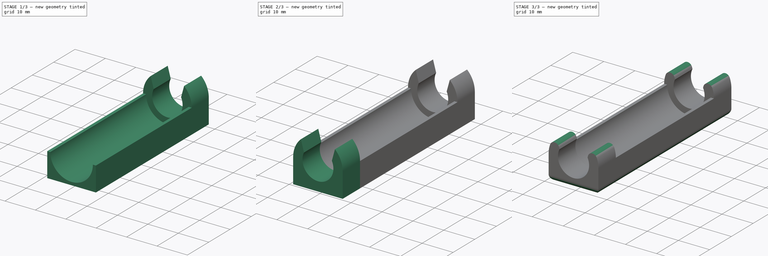
[diagram: build sequence overview — one tinted view per stage of 3, left to right]
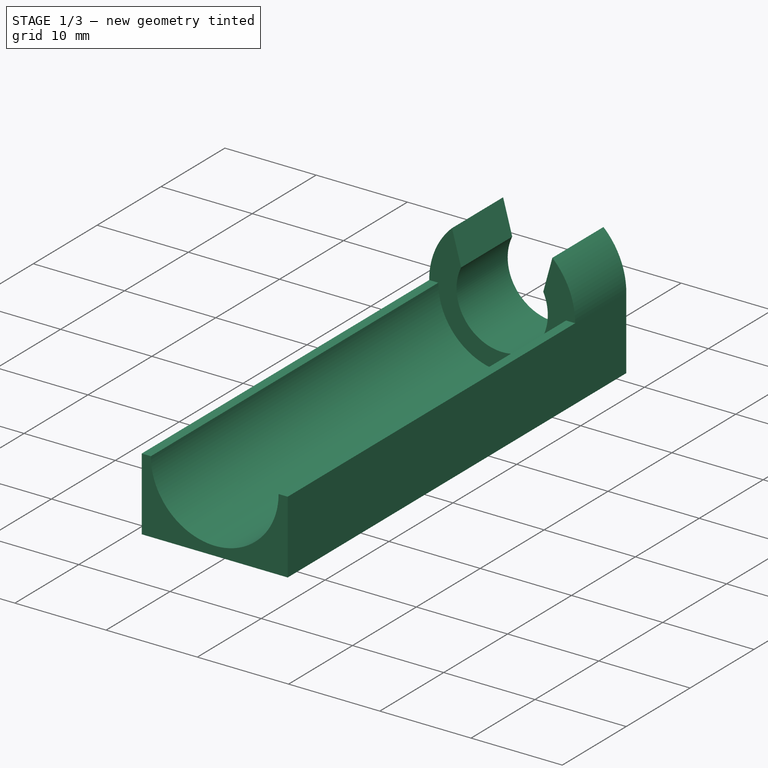
[diagram: stage 1 of 3 — iso view after this stage's code; geometry added in this stage tinted green]
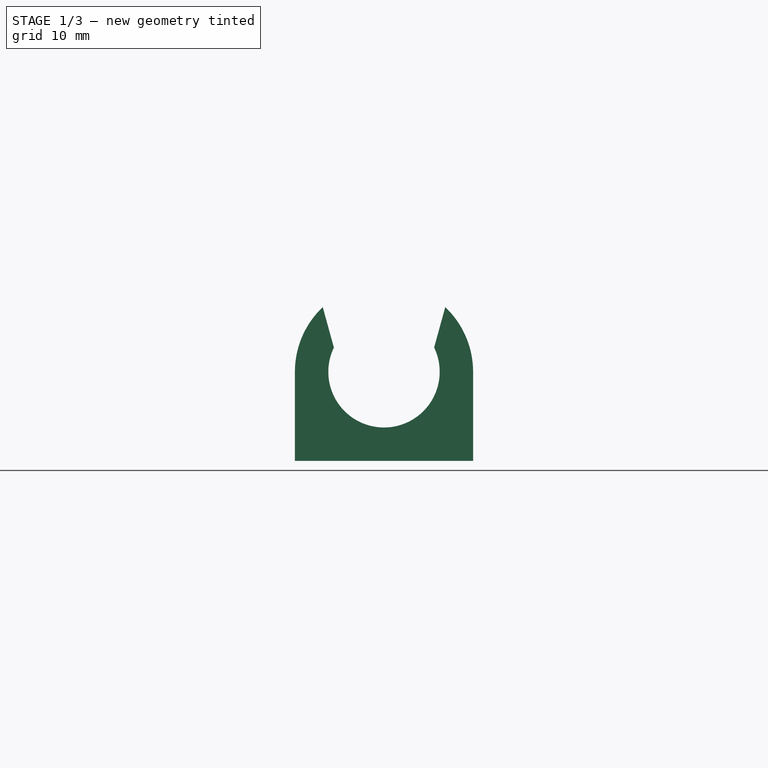
[diagram: stage 1 of 3 — front view after this stage's code; geometry added in this stage tinted green]
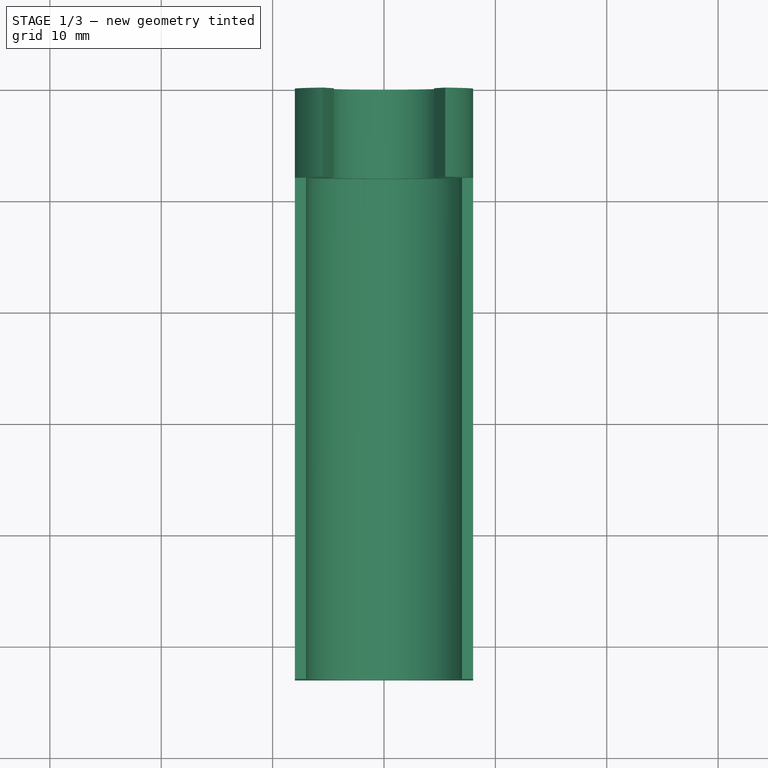
[diagram: stage 1 of 3 — top view after this stage's code; geometry added in this stage tinted green]
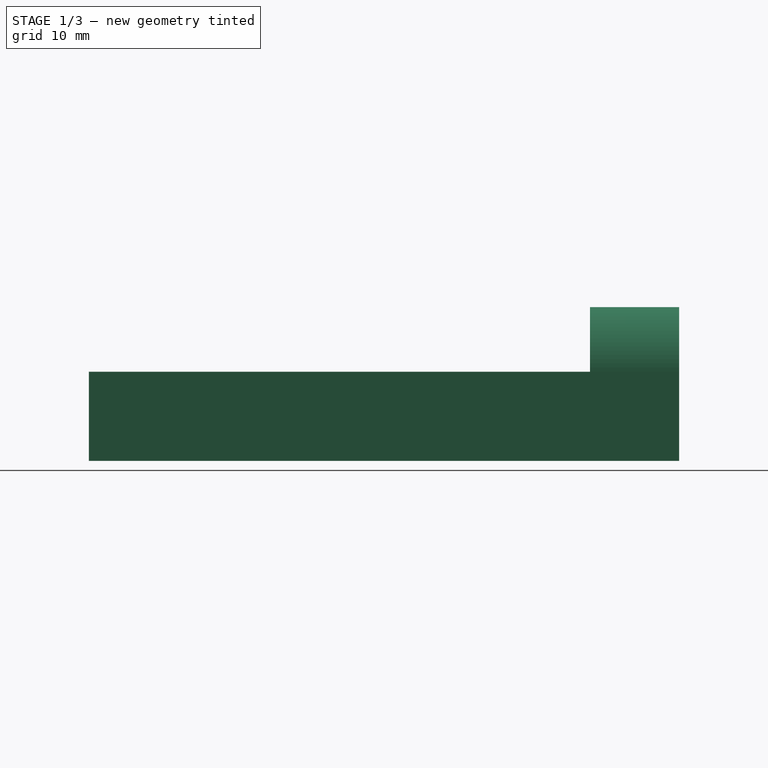
[diagram: stage 1 of 3 — right view after this stage's code; geometry added in this stage tinted green]
FCSTD DOCUMENT  (FreeCAD 0.16RUnknown)
Label: 360_controller_connector_clip
License: All rights reserved
LicenseURL: http://en.wikipedia.org/wiki/All_rights_reserved
objects: Sketcher::SketchObject×3, PartDesign::Pad×3, PartDesign::Fillet×2
note: 11 computed .brp shape members not serialized (recipe doc carries the construction recipe); baked Part::Feature solids carry a one-line shape summary decoded from their .brp

FEATURE [Sketcher::SketchObject] Sketch
  Placement = pos=(0,0,0) rot=(-1,0,0;4.71239rad)
  sketch-geometry (10):
    g0: LineSegment StartX=-8 StartY=0 StartZ=0 EndX=8 EndY=0 EndZ=0
    g1: LineSegment StartX=-8 StartY=0 StartZ=0 EndX=-8 EndY=7.99997 EndZ=0
    g2: LineSegment StartX=8 StartY=0 StartZ=0 EndX=8 EndY=7.99997 EndZ=0
    g3: ArcOfCircle CenterX=0 CenterY=8 CenterZ=0 NormalX=0 NormalY=0 NormalZ=1 Radius=8 StartAngle=2.32884 EndAngle=3.1416
    g4: ArcOfCircle CenterX=0 CenterY=8 CenterZ=0 NormalX=0 NormalY=0 NormalZ=1 Radius=5 StartAngle=2.69057 EndAngle=6.73421
    g5: LineSegment StartX=-4.5 StartY=10.1794 StartZ=0 EndX=-5.5 EndY=13.8095 EndZ=0
    g6: ArcOfCircle CenterX=0 CenterY=8 CenterZ=0 NormalX=0 NormalY=0 NormalZ=1 Radius=8 StartAngle=6.28318 EndAngle=7.09594
    g7: LineSegment StartX=4.5 StartY=10.1794 StartZ=0 EndX=5.5 EndY=13.8095 EndZ=0
    g8: LineSegment [constr] StartX=-5.5 StartY=13.8095 StartZ=0 EndX=5.5 EndY=13.8095 EndZ=0
    g9: LineSegment [constr] StartX=-4.5 StartY=10.1794 StartZ=0 EndX=4.5 EndY=10.1794 EndZ=0
  constraints (29):
    c: PointOnObject(g0,g-1)
    c: PointOnObject(g0,g-1)
    c: Coincident(g1,g0)
    c: Vertical(g1)
    c: Coincident(g2,g0)
    c: Vertical(g2)
    c: PointOnObject(g3,g-2)
    c: Coincident(g3,g1)
    c: Tangent(g3,g1)
    c: Coincident(g4,g3)
    c: Coincident(g5,g4)
    c: Coincident(g5,g3)
    c: Coincident(g6,g3)
    c: Coincident(g6,g2)
    c: Coincident(g7,g4)
    c: Coincident(g7,g6)
    c: Radius(g4) = 5
    c: Tangent(g2,g6)
    c: Radius(g6) = 8
    c: Radius(g3) = 8
    c: Coincident(g8,g3)
    c: Coincident(g8,g6)
    c: Horizontal(g8)
    c: Coincident(g9,g4)
    c: Coincident(g9,g4)
    c: Horizontal(g9)
    c: DistanceX(g9,g9) = 9
    c: DistanceX(g8,g8) = 11
    c: DistanceY(g-1,g3) = 8
FEATURE [PartDesign::Pad] Pad
  Length = 8
  Length2 = 100
  Placement = pos=(0,0,0) rot=(-1,0,0;4.71239rad)
  Sketch = -> Sketch
  Type = 0
FEATURE [Sketcher::SketchObject] Sketch001
  Placement = pos=(0,-8,0) rot=(1,0,0;1.5708rad)
  Support = -> Pad [Face10]
  sketch-geometry (7):
    g0: LineSegment StartX=-8 StartY=0 StartZ=0 EndX=8 EndY=0 EndZ=0
    g1: LineSegment StartX=-8 StartY=0 StartZ=0 EndX=-8 EndY=8 EndZ=0
    g2: LineSegment StartX=8 StartY=0 StartZ=0 EndX=8 EndY=8 EndZ=0
    g3: ArcOfCircle CenterX=0 CenterY=8 CenterZ=0 NormalX=0 NormalY=0 NormalZ=1 Radius=7 StartAngle=3.14159 EndAngle=6.28319
    g4: LineSegment StartX=-7 StartY=8 StartZ=0 EndX=-8 EndY=8 EndZ=0
    g5: LineSegment StartX=7 StartY=8 StartZ=0 EndX=8 EndY=8 EndZ=0
    g6: LineSegment [constr] StartX=-7 StartY=8 StartZ=0 EndX=7 EndY=8 EndZ=0
  constraints (21):
    c: PointOnObject(g0,g-1)
    c: PointOnObject(g0,g-1)
    c: Coincident(g1,g0)
    c: Vertical(g1)
    c: Coincident(g2,g0)
    c: Vertical(g2)
    c: Radius(g3) = 7
    c: Coincident(g4,g3)
    c: Coincident(g4,g1)
    c: Coincident(g5,g3)
    c: Coincident(g5,g2)
    c: Horizontal(g5)
    c: Horizontal(g4)
    c: DistanceY(g-1,g3) = 8
    c: DistanceX(g1,g3) = 8
    c: DistanceX(g3,g2) = 8
    c: PointOnObject(g3,g-2)
    c: Coincident(g6,g3)
    c: Coincident(g6,g3)
    c: Horizontal(g6)
    c: PointOnObject(g3,g6)
FEATURE [PartDesign::Pad] Pad001
  Length = 45
  Length2 = 100
  Placement = pos=(0,0,0) rot=(-1,0,0;4.71239rad)
  Sketch = -> Sketch001
  Type = 0
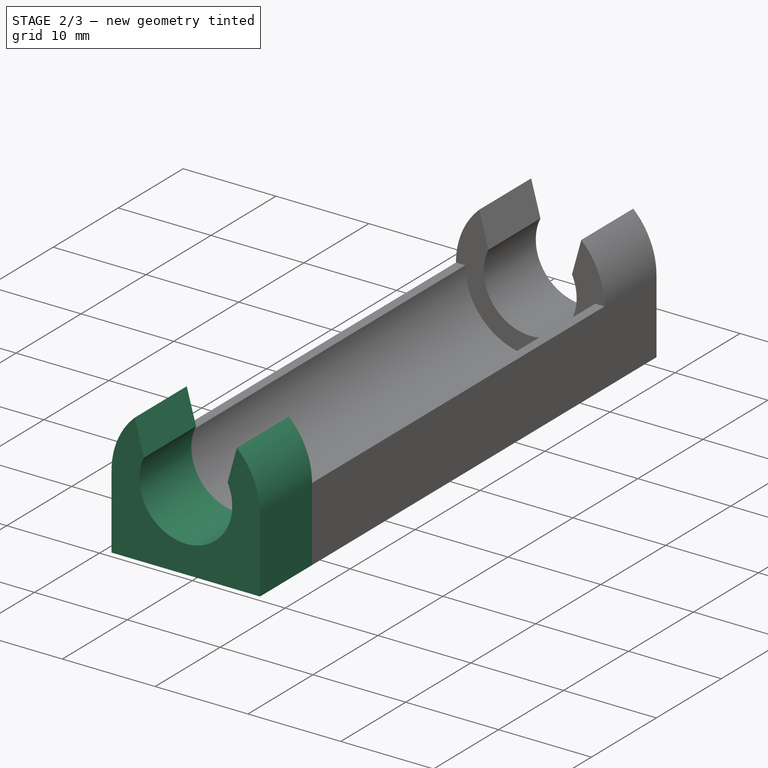
[diagram: stage 2 of 3 — iso view after this stage's code; geometry added in this stage tinted green]
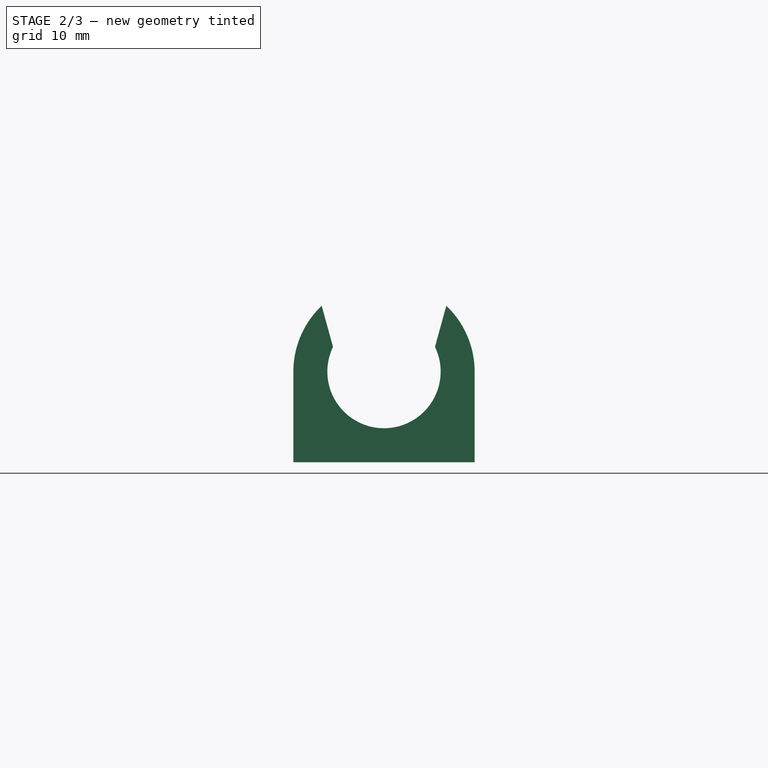
[diagram: stage 2 of 3 — front view after this stage's code; geometry added in this stage tinted green]
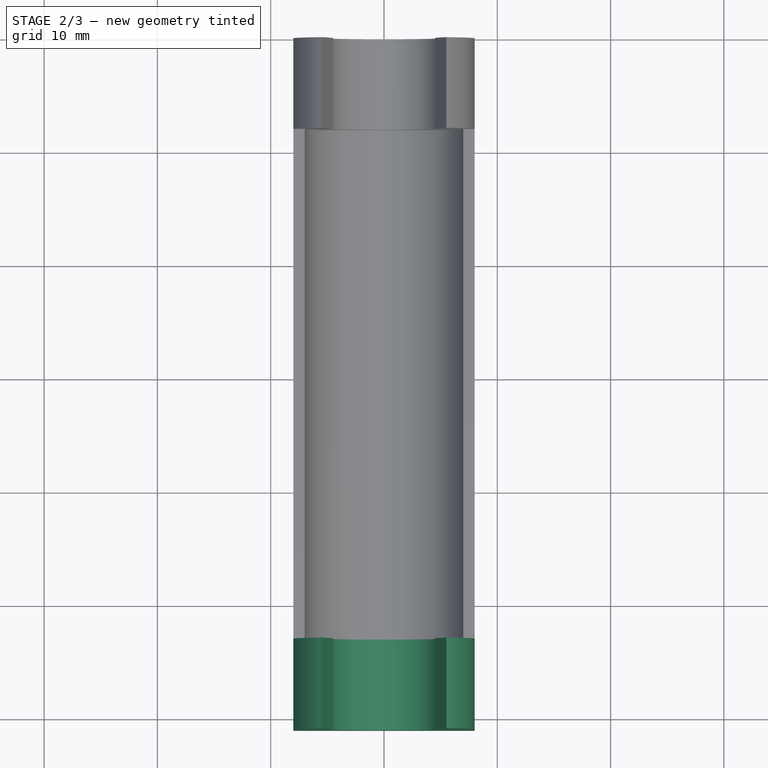
[diagram: stage 2 of 3 — top view after this stage's code; geometry added in this stage tinted green]
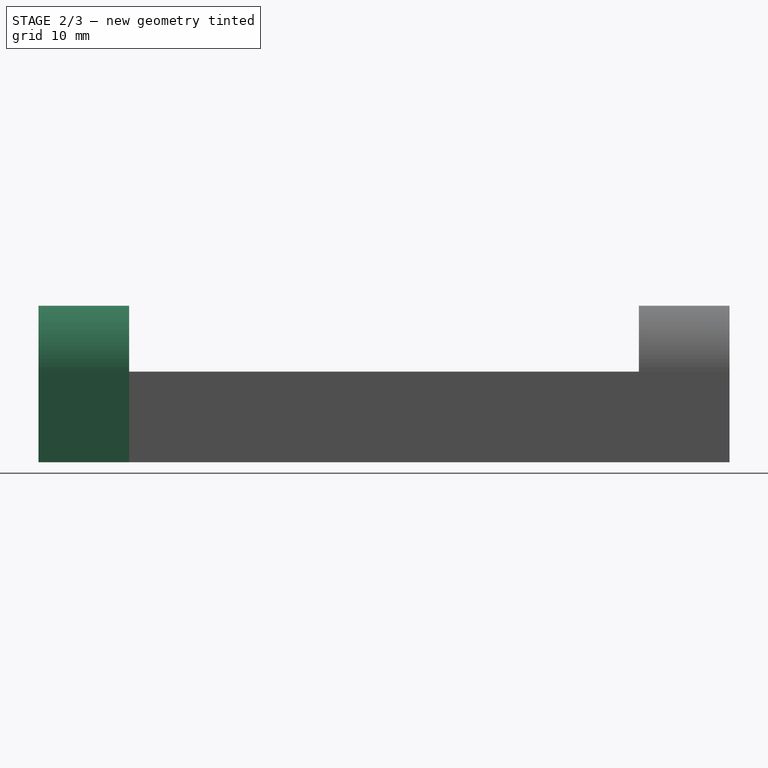
[diagram: stage 2 of 3 — right view after this stage's code; geometry added in this stage tinted green]
FEATURE [Sketcher::SketchObject] Sketch002
  Placement = pos=(0,-53,0) rot=(1,0,0;1.5708rad)
  Support = -> Pad001 [Face16]
  sketch-geometry (10):
    g0: LineSegment StartX=-8 StartY=0 StartZ=0 EndX=8 EndY=0 EndZ=0
    g1: LineSegment StartX=-8 StartY=0 StartZ=0 EndX=-8 EndY=8 EndZ=0
    g2: LineSegment StartX=8 StartY=0 StartZ=0 EndX=8 EndY=8 EndZ=0
    g3: ArcOfCircle CenterX=0 CenterY=8 CenterZ=0 NormalX=0 NormalY=0 NormalZ=1 Radius=8 StartAngle=2.32884 EndAngle=3.14159
    g4: ArcOfCircle CenterX=0 CenterY=8 CenterZ=0 NormalX=0 NormalY=0 NormalZ=1 Radius=5 StartAngle=2.69057 EndAngle=6.73421
    g5: LineSegment StartX=-4.5 StartY=10.1794 StartZ=0 EndX=-5.5 EndY=13.8095 EndZ=0
    g6: ArcOfCircle CenterX=0 CenterY=8 CenterZ=0 NormalX=0 NormalY=0 NormalZ=1 Radius=8 StartAngle=6.28319 EndAngle=7.09594
    g7: LineSegment StartX=4.5 StartY=10.1794 StartZ=0 EndX=5.5 EndY=13.8095 EndZ=0
    g8: LineSegment [constr] StartX=-5.5 StartY=13.8095 StartZ=0 EndX=5.5 EndY=13.8095 EndZ=0
    g9: LineSegment [constr] StartX=-4.5 StartY=10.1794 StartZ=0 EndX=4.5 EndY=10.1794 EndZ=0
  constraints (29):
    c: PointOnObject(g0,g-1)
    c: PointOnObject(g0,g-1)
    c: Coincident(g1,g0)
    c: Vertical(g1)
    c: Coincident(g2,g0)
    c: Vertical(g2)
    c: PointOnObject(g3,g-2)
    c: Coincident(g3,g1)
    c: Tangent(g3,g1)
    c: Coincident(g4,g3)
    c: Coincident(g5,g4)
    c: Coincident(g5,g3)
    c: Coincident(g6,g3)
    c: Coincident(g6,g2)
    c: Coincident(g7,g4)
    c: Coincident(g7,g6)
    c: Radius(g4) = 5
    c: Tangent(g2,g6)
    c: Radius(g6) = 8
    c: Radius(g3) = 8
    c: Coincident(g8,g3)
    c: Coincident(g8,g6)
    c: Horizontal(g8)
    c: Coincident(g9,g4)
    c: Coincident(g9,g4)
    c: Horizontal(g9)
    c: DistanceX(g8,g8) = 11
    c: DistanceY(g-1,g3) = 8
    c: DistanceX(g9,g9) = 9
FEATURE [PartDesign::Pad] Pad002
  Length = 8
  Length2 = 100
  Placement = pos=(0,0,0) rot=(-1,0,0;4.71239rad)
  Sketch = -> Sketch002
  Type = 0
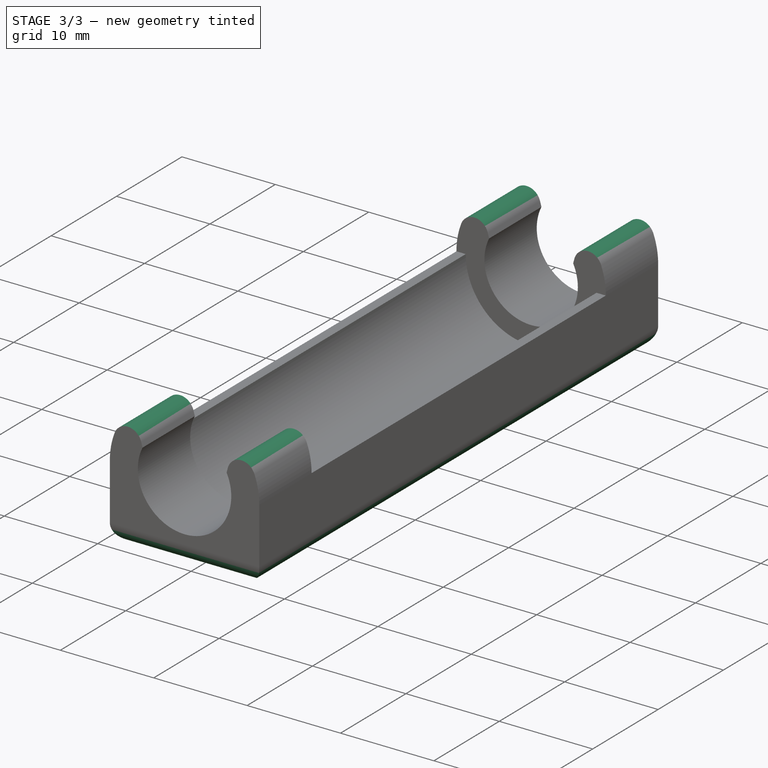
[diagram: stage 3 of 3 — iso view after this stage's code; geometry added in this stage tinted green]
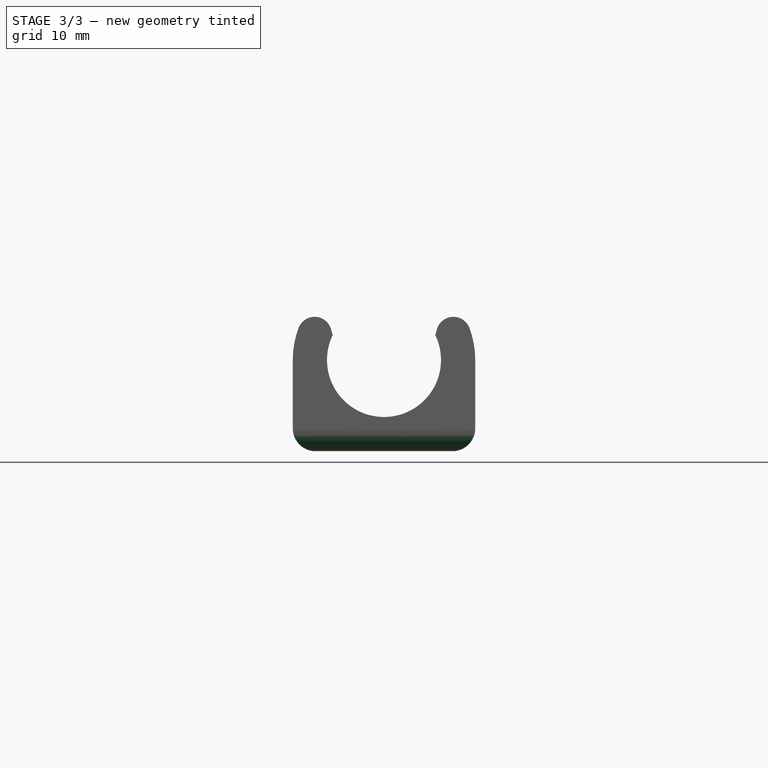
[diagram: stage 3 of 3 — front view after this stage's code; geometry added in this stage tinted green]
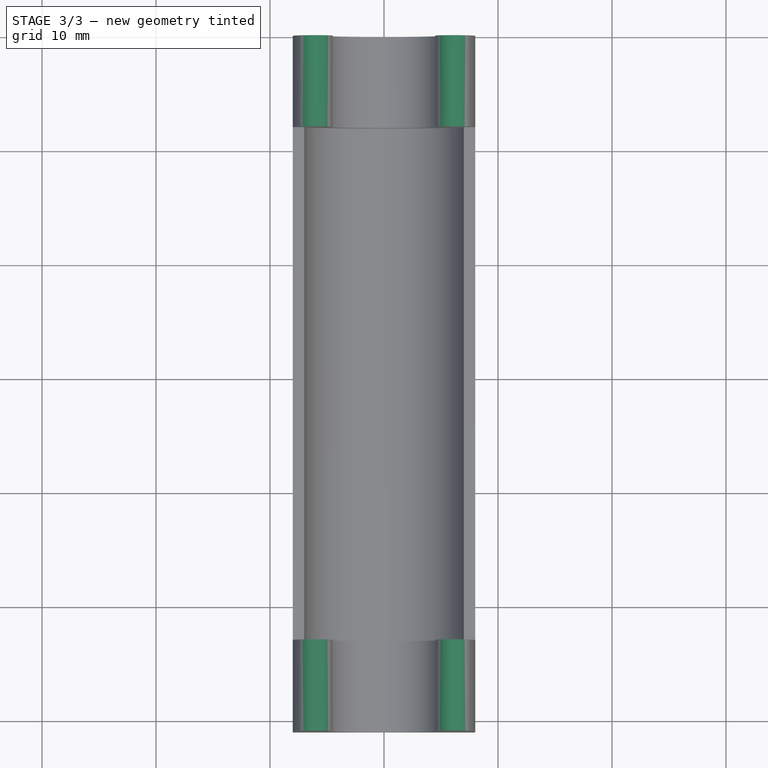
[diagram: stage 3 of 3 — top view after this stage's code; geometry added in this stage tinted green]
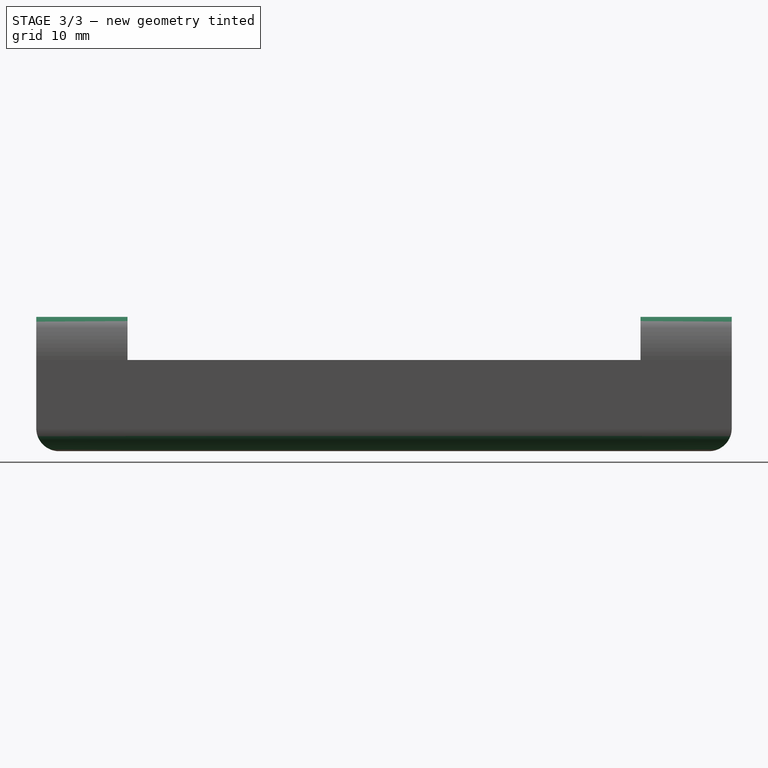
[diagram: stage 3 of 3 — right view after this stage's code; geometry added in this stage tinted green]
FEATURE [PartDesign::Fillet] Fillet
  Base = -> Pad002 [Edge58,Edge62,Edge2,Edge22]
  Placement = pos=(0,0,0) rot=(-1,0,0;4.71239rad)
  Radius = 1.5
FEATURE [PartDesign::Fillet] Fillet001
  Base = -> Fillet [Edge55,Edge45,Edge58,Edge59,Edge43,Edge31,Edge46,Edge28,Edge11,Edge32]
  Placement = pos=(0,0,0) rot=(-1,0,0;4.71239rad)
  Radius = 2
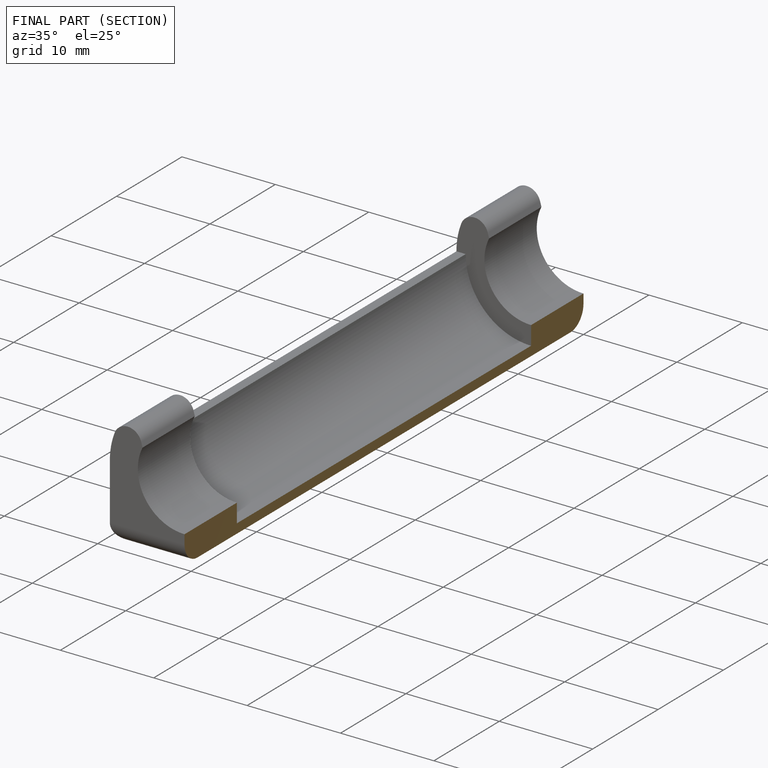
[diagram: finished part — half-section view (interior)]
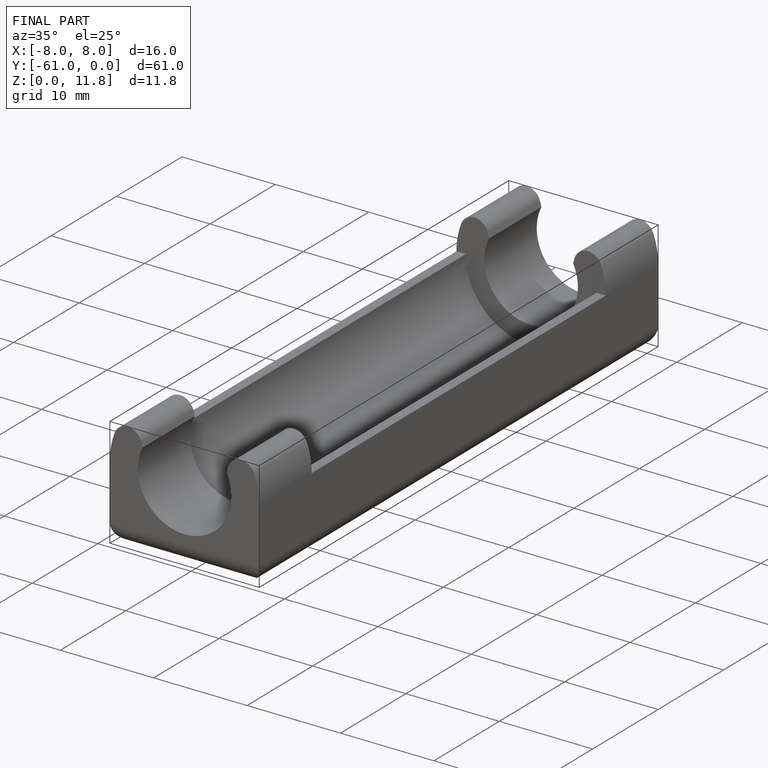
[diagram: finished part — iso view with bounding-box wireframe]
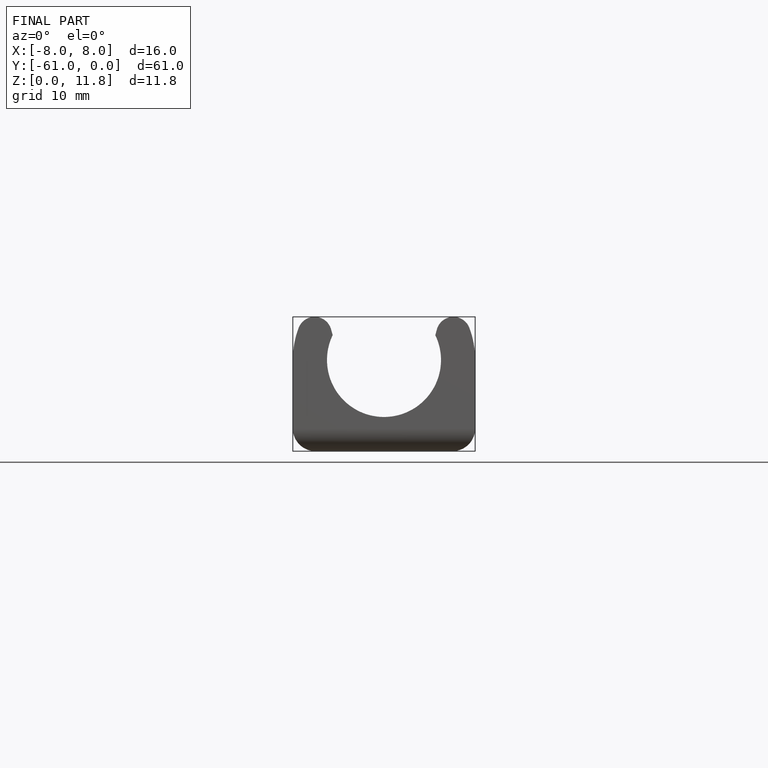
[diagram: finished part — front view with bounding-box wireframe]
